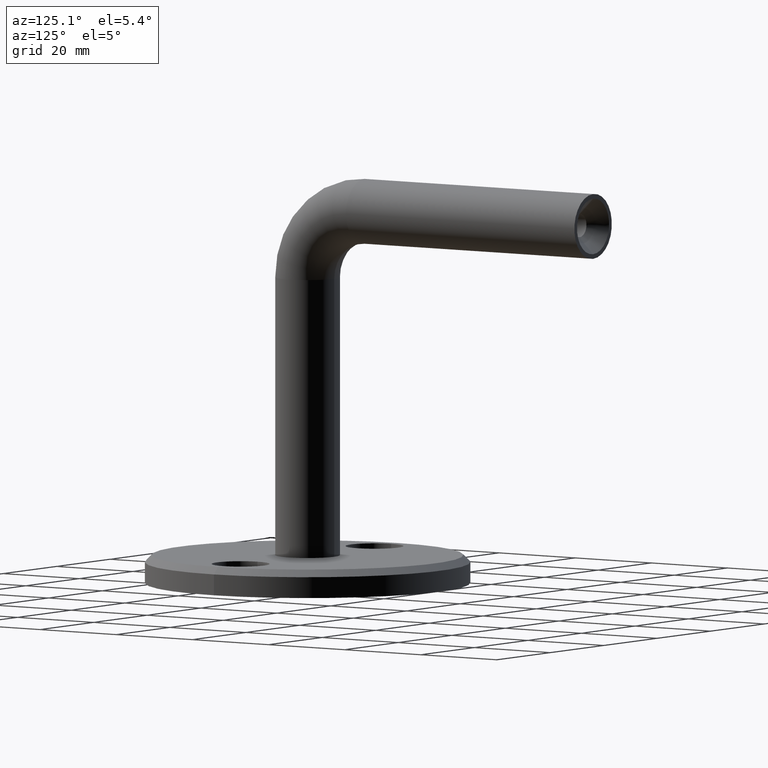
[diagram: clean part render]
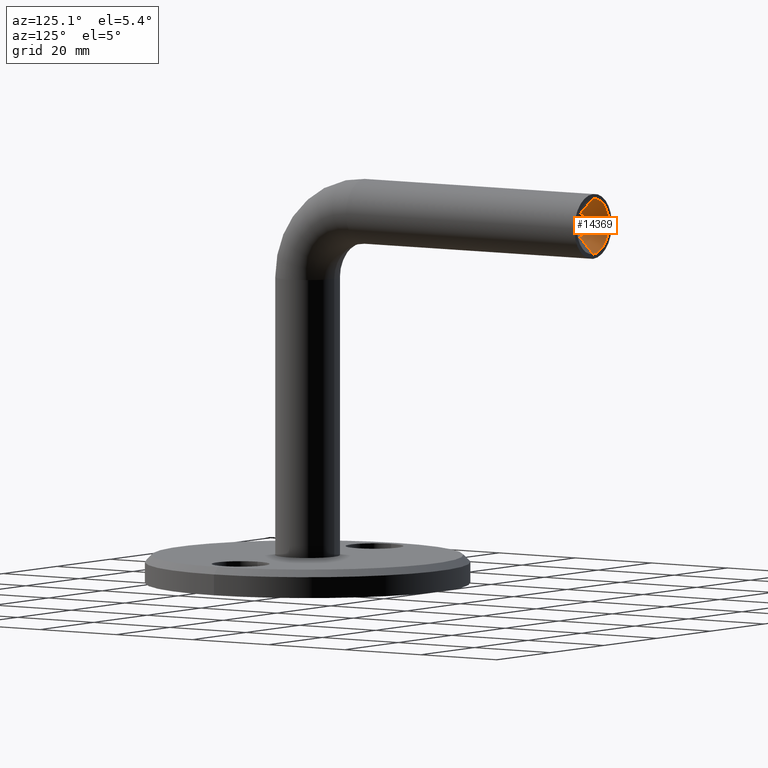
[diagram: same view with one face highlighted and labeled with its STEP entity id]
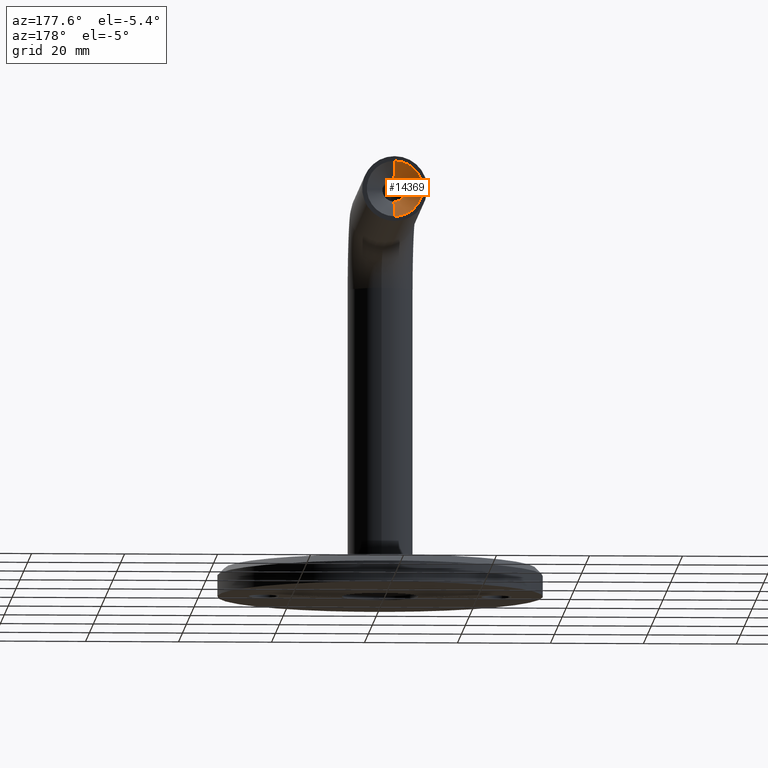
[diagram: same view with one face highlighted and labeled with its STEP entity id]
A machine part, auxiliary view. The second image highlights one B-rep face of the part: STEP entity #14369.
A second angle (auxiliary view) of the same face is appended — the face is thin or edge-on in the first view.
In plain terms, the highlighted conical surface has half-angle 45 deg.
Its self-contained STEP definition (entity closure, byte-faithful):
#376 = EDGE_CURVE ( 'NONE', #3352, #4083, #11292, .T. ) ;
#665 = VERTEX_POINT ( 'NONE', #1640 ) ;
#1640 = CARTESIAN_POINT ( 'NONE',  ( 5.204748896376240838E-16, 71.49999809265138140, -77.50000000000001421 ) ) ;
#1932 = AXIS2_PLACEMENT_3D ( 'NONE', #2141, #5790, #10728 ) ;
#1935 = CARTESIAN_POINT ( 'NONE',  ( 7.347880794884117764E-16, 74.99999809265139561, -81.00000000000002842 ) ) ;
#2071 = AXIS2_PLACEMENT_3D ( 'NONE', #3202, #10467, #5632 ) ;
#2141 = CARTESIAN_POINT ( 'NONE',  ( 0.000000000000000000, 71.49999809265138140, -75.00000000000002842 ) ) ;
#2824 = EDGE_CURVE ( 'NONE', #665, #3352, #9371, .T. ) ;
#2854 = ORIENTED_EDGE ( 'NONE', *, *, #2824, .T. ) ;
#2934 = ORIENTED_EDGE ( 'NONE', *, *, #376, .T. ) ;
#3202 = CARTESIAN_POINT ( 'NONE',  ( 0.000000000000000000, 74.99999809265139561, -75.00000000000002842 ) ) ;
#3352 = VERTEX_POINT ( 'NONE', #9104 ) ;
#3353 = DIRECTION ( 'NONE',  ( -0.000000000000000000, 1.000000000000000000, -2.312964781690076159E-16 ) ) ;
#3812 = ORIENTED_EDGE ( 'NONE', *, *, #6733, .T. ) ;
#3853 = VECTOR ( 'NONE', #15409, 1000.000000000000000 ) ;
#3946 = DIRECTION ( 'NONE',  ( 0.000000000000000000, 0.7071067811865479058, 0.7071067811865472397 ) ) ;
#4083 = VERTEX_POINT ( 'NONE', #10892 ) ;
#5061 = CONICAL_SURFACE ( 'NONE', #2071, 6.000000000000005329, 0.7853981633974480570 ) ;
#5387 = ORIENTED_EDGE ( 'NONE', *, *, #8934, .F. ) ;
#5632 = DIRECTION ( 'NONE',  ( 0.000000000000000000, 0.000000000000000000, 1.000000000000000000 ) ) ;
#5723 = CARTESIAN_POINT ( 'NONE',  ( 7.347880794884119736E-16, 74.99999809265139561, -81.00000000000002842 ) ) ;
#5790 = DIRECTION ( 'NONE',  ( 0.000000000000000000, -1.000000000000000000, 2.312964781690076159E-16 ) ) ;
#6701 = CIRCLE ( 'NONE', #7400, 6.000000000000005329 ) ;
#6733 = EDGE_CURVE ( 'NONE', #4083, #12069, #6701, .T. ) ;
#7400 = AXIS2_PLACEMENT_3D ( 'NONE', #8144, #3353, #13022 ) ;
#7611 = LINE ( 'NONE', #5723, #3853 ) ;
#8097 = EDGE_LOOP ( 'NONE', ( #5387, #2854, #2934, #3812 ) ) ;
#8144 = CARTESIAN_POINT ( 'NONE',  ( 0.000000000000000000, 74.99999809265139561, -75.00000000000002842 ) ) ;
#8745 = CARTESIAN_POINT ( 'NONE',  ( 0.000000000000000000, 74.99999809265139561, -69.00000000000001421 ) ) ;
#8934 = EDGE_CURVE ( 'NONE', #665, #12069, #7611, .T. ) ;
#9104 = CARTESIAN_POINT ( 'NONE',  ( 0.000000000000000000, 71.49999809265138140, -72.50000000000004263 ) ) ;
#9371 = CIRCLE ( 'NONE', #1932, 2.499999999999988454 ) ;
#10467 = DIRECTION ( 'NONE',  ( -0.000000000000000000, 1.000000000000000000, -2.312964781690076159E-16 ) ) ;
#10728 = DIRECTION ( 'NONE',  ( 0.000000000000000000, 0.000000000000000000, 1.000000000000000000 ) ) ;
#10892 = CARTESIAN_POINT ( 'NONE',  ( 0.000000000000000000, 74.99999809265139561, -69.00000000000001421 ) ) ;
#11091 = FACE_OUTER_BOUND ( 'NONE', #8097, .T. ) ;
#11292 = LINE ( 'NONE', #8745, #15614 ) ;
#12069 = VERTEX_POINT ( 'NONE', #1935 ) ;
#13022 = DIRECTION ( 'NONE',  ( 0.000000000000000000, 0.000000000000000000, 1.000000000000000000 ) ) ;
#14369 = ADVANCED_FACE ( 'NONE', ( #11091 ), #5061, .F. ) ;
#15409 = DIRECTION ( 'NONE',  ( 8.659560562354930393E-17, 0.7071067811865475727, -0.7071067811865474617 ) ) ;
#15614 = VECTOR ( 'NONE', #3946, 999.9999999999998863 ) ;